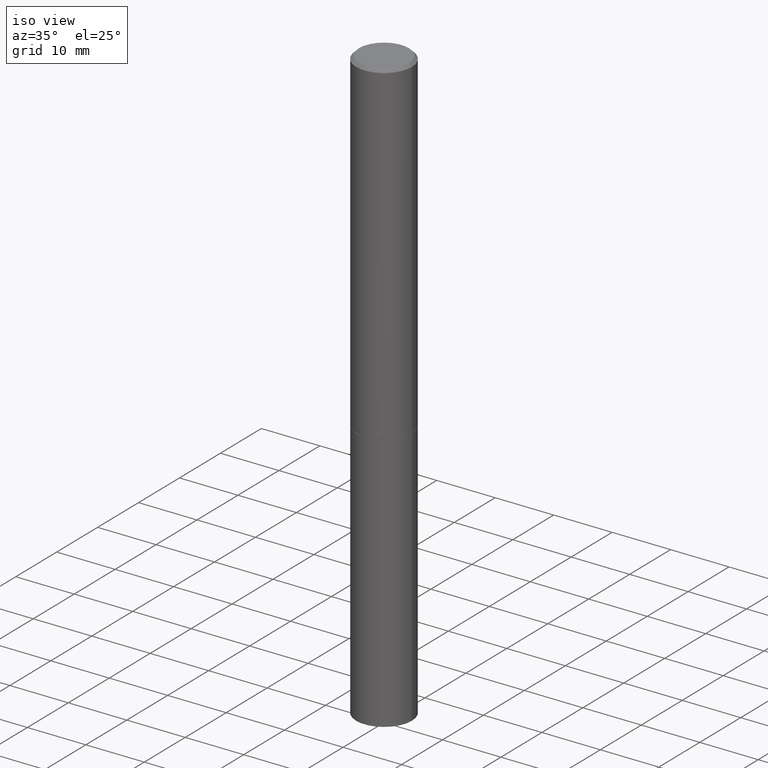
[diagram: clean part render]
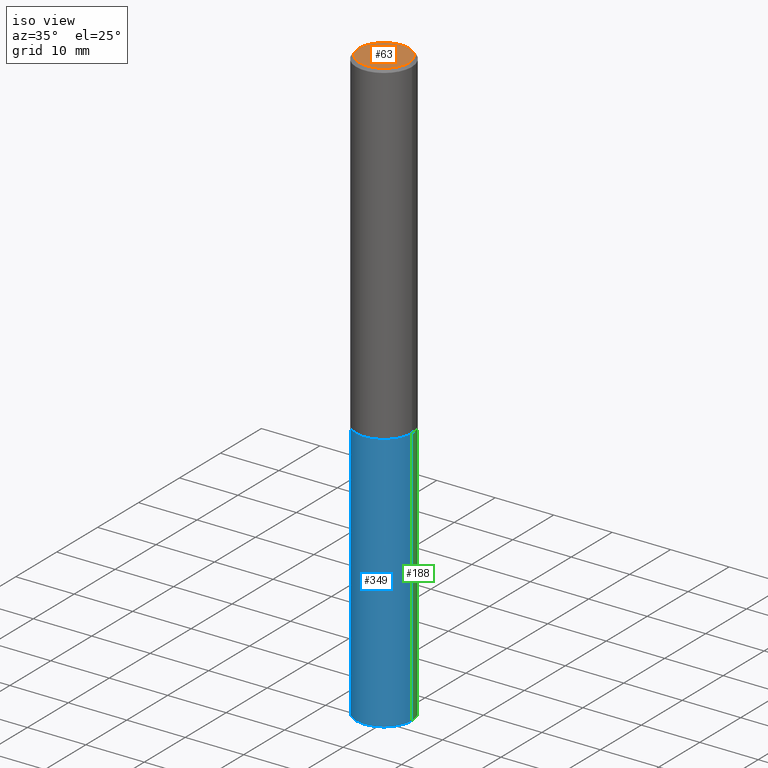
[diagram: same view with three faces highlighted in distinct colors, each labeled with its STEP entity id]
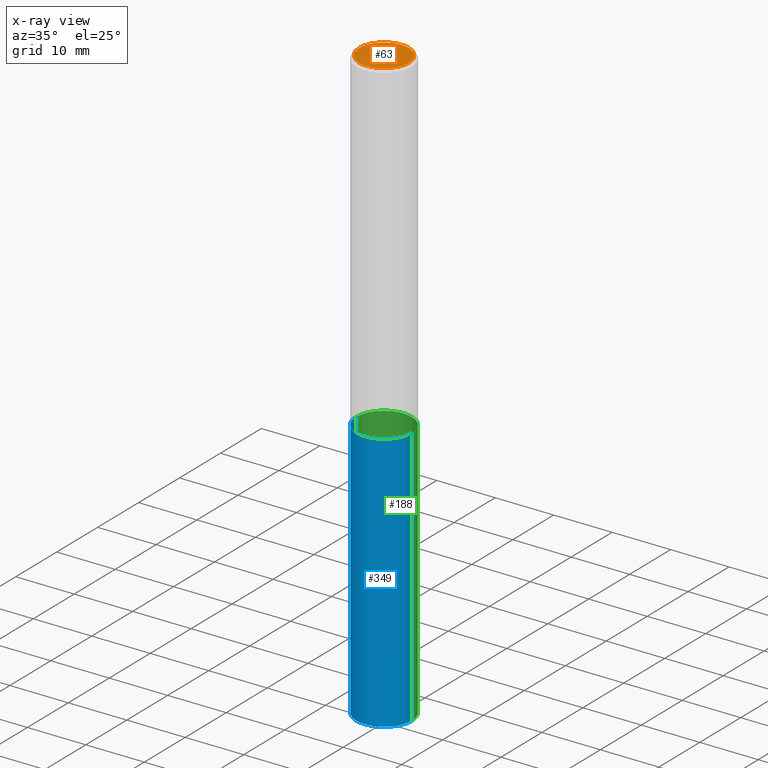
[diagram: x-ray of the same camera — body ghosted, the three highlighted faces saturated]
A machine part, iso view with three faces highlighted in distinct colors.
The next image is the same camera in x-ray (body ghosted, the three faces saturated) — at least one of them is partly hidden behind the body in this view.
Their STEP definitions:

[orange] entity #63 — the highlighted planar face has unit normal (0, -0, -1).
#5 = EDGE_CURVE ( 'NONE', #68, #230, #110, .T. ) ;
#11 = CARTESIAN_POINT ( 'NONE',  ( 0.000000000000000000, 0.000000000000000000, 0.000000000000000000 ) ) ;
#14 = ORIENTED_EDGE ( 'NONE', *, *, #5, .T. ) ;
#23 = AXIS2_PLACEMENT_3D ( 'NONE', #11, #173, #113 ) ;
#35 = CIRCLE ( 'NONE', #196, 0.1674999999999997602 ) ;
#47 = CARTESIAN_POINT ( 'NONE',  ( 1.169646248512447820E-15, 0.1674999999999997602, -5.848231242562259809E-16 ) ) ;
#54 = FACE_OUTER_BOUND ( 'NONE', #258, .T. ) ;
#63 = ADVANCED_FACE ( 'NONE', ( #54 ), #147, .F. ) ;
#68 = VERTEX_POINT ( 'NONE', #237 ) ;
#71 = EDGE_CURVE ( 'NONE', #230, #68, #35, .T. ) ;
#105 = ORIENTED_EDGE ( 'NONE', *, *, #71, .T. ) ;
#110 = CIRCLE ( 'NONE', #23, 0.1674999999999997602 ) ;
#113 = DIRECTION ( 'NONE',  ( 1.000000000000000000, -6.982962677686265922E-15, 4.876176775795935793E-29 ) ) ;
#147 = PLANE ( 'NONE',  #359 ) ;
#173 = DIRECTION ( 'NONE',  ( -2.445468806185136597E-29, 3.491481338843145583E-15, 1.000000000000000000 ) ) ;
#180 = CARTESIAN_POINT ( 'NONE',  ( 0.1674999999999997602, -1.252653207992876711E-15, 8.469775550109228175E-30 ) ) ;
#196 = AXIS2_PLACEMENT_3D ( 'NONE', #357, #336, #248 ) ;
#230 = VERTEX_POINT ( 'NONE', #180 ) ;
#233 = DIRECTION ( 'NONE',  ( 2.438088387897960049E-29, -3.491481338843145188E-15, -1.000000000000000000 ) ) ;
#237 = CARTESIAN_POINT ( 'NONE',  ( -0.1674999999999997602, 1.204561061900878878E-15, -8.301862719484099178E-30 ) ) ;
#248 = DIRECTION ( 'NONE',  ( 1.000000000000000000, -6.982962677686265922E-15, 4.876176775795935793E-29 ) ) ;
#258 = EDGE_LOOP ( 'NONE', ( #14, #105 ) ) ;
#268 = DIRECTION ( 'NONE',  ( -1.000000000000000000, 6.982962677686265922E-15, -4.876176775795935793E-29 ) ) ;
#336 = DIRECTION ( 'NONE',  ( -2.445468806185136597E-29, 3.491481338843145583E-15, 1.000000000000000000 ) ) ;
#357 = CARTESIAN_POINT ( 'NONE',  ( 0.000000000000000000, 0.000000000000000000, 0.000000000000000000 ) ) ;
#359 = AXIS2_PLACEMENT_3D ( 'NONE', #47, #233, #268 ) ;

[blue] entity #349 — the highlighted cylindrical surface (edge-blend (fillet) strip) has radius 4.7625 mm, axis along (-0, 0, 1).
#6 = CARTESIAN_POINT ( 'NONE',  ( 9.781875224740546387E-29, -1.396592535537258233E-14, -4.000000000000000000 ) ) ;
#16 = CARTESIAN_POINT ( 'NONE',  ( -0.1875000000000000278, -9.578611554334641752E-15, -4.000000000000000000 ) ) ;
#30 = EDGE_CURVE ( 'NONE', #321, #62, #247, .T. ) ;
#62 = VERTEX_POINT ( 'NONE', #176 ) ;
#64 = EDGE_LOOP ( 'NONE', ( #108, #318, #293, #89 ) ) ;
#66 = VECTOR ( 'NONE', #109, 39.37007874015748143 ) ;
#69 = FACE_OUTER_BOUND ( 'NONE', #64, .T. ) ;
#73 = LINE ( 'NONE', #269, #197 ) ;
#89 = ORIENTED_EDGE ( 'NONE', *, *, #30, .F. ) ;
#104 = AXIS2_PLACEMENT_3D ( 'NONE', #6, #319, #170 ) ;
#108 = ORIENTED_EDGE ( 'NONE', *, *, #178, .F. ) ;
#109 = DIRECTION ( 'NONE',  ( -2.445468806185136877E-29, 3.491481338843145188E-15, 1.000000000000000000 ) ) ;
#116 = CARTESIAN_POINT ( 'NONE',  ( 5.502304813916557343E-29, -7.855833012397078448E-15, -2.250000000000000000 ) ) ;
#125 = CARTESIAN_POINT ( 'NONE',  ( -0.1875000000000000278, -9.578611554334641752E-15, -2.250000000000000000 ) ) ;
#135 = CARTESIAN_POINT ( 'NONE',  ( -0.1875000000000000278, 1.332267629550188046E-15, -9.223003294227947991E-30 ) ) ;
#142 = DIRECTION ( 'NONE',  ( -2.445468806185136877E-29, 3.491481338843145188E-15, 1.000000000000000000 ) ) ;
#149 = DIRECTION ( 'NONE',  ( -2.445468806185136597E-29, 3.491481338843145583E-15, 1.000000000000000000 ) ) ;
#156 = CIRCLE ( 'NONE', #104, 0.1875000000000000278 ) ;
#161 = EDGE_CURVE ( 'NONE', #295, #352, #156, .T. ) ;
#170 = DIRECTION ( 'NONE',  ( 1.000000000000000000, -6.982962677686261189E-15, 0.000000000000000000 ) ) ;
#176 = CARTESIAN_POINT ( 'NONE',  ( 0.1875000000000000278, -9.165138514463253457E-15, -2.250000000000000000 ) ) ;
#177 = CARTESIAN_POINT ( 'NONE',  ( 0.000000000000000000, 0.000000000000000000, 0.000000000000000000 ) ) ;
#178 = EDGE_CURVE ( 'NONE', #295, #321, #261, .T. ) ;
#197 = VECTOR ( 'NONE', #142, 39.37007874015748143 ) ;
#205 = DIRECTION ( 'NONE',  ( 1.000000000000000000, -6.982962677686266711E-15, 0.000000000000000000 ) ) ;
#209 = DIRECTION ( 'NONE',  ( 1.000000000000000000, -6.982962677686265922E-15, 4.876176775795935793E-29 ) ) ;
#235 = EDGE_CURVE ( 'NONE', #352, #62, #73, .T. ) ;
#247 = CIRCLE ( 'NONE', #282, 0.1875000000000000278 ) ;
#261 = LINE ( 'NONE', #135, #66 ) ;
#269 = CARTESIAN_POINT ( 'NONE',  ( 0.1875000000000000278, -1.309305502066175008E-15, 9.142831454617381013E-30 ) ) ;
#270 = CARTESIAN_POINT ( 'NONE',  ( 0.1875000000000000278, -1.527523085743875734E-14, -4.000000000000000000 ) ) ;
#282 = AXIS2_PLACEMENT_3D ( 'NONE', #116, #297, #205 ) ;
#293 = ORIENTED_EDGE ( 'NONE', *, *, #235, .T. ) ;
#295 = VERTEX_POINT ( 'NONE', #16 ) ;
#297 = DIRECTION ( 'NONE',  ( -2.445468806185136597E-29, 3.491481338843145583E-15, 1.000000000000000000 ) ) ;
#318 = ORIENTED_EDGE ( 'NONE', *, *, #161, .T. ) ;
#319 = DIRECTION ( 'NONE',  ( -2.445468806185136597E-29, 3.491481338843145583E-15, 1.000000000000000000 ) ) ;
#321 = VERTEX_POINT ( 'NONE', #125 ) ;
#329 = CYLINDRICAL_SURFACE ( 'NONE', #343, 0.1875000000000000278 ) ;
#343 = AXIS2_PLACEMENT_3D ( 'NONE', #177, #149, #209 ) ;
#349 = ADVANCED_FACE ( 'NONE', ( #69 ), #329, .T. ) ;
#352 = VERTEX_POINT ( 'NONE', #270 ) ;

[green] entity #188 — the highlighted cylindrical surface (edge-blend (fillet) strip) has radius 4.7625 mm, axis along (-0, 0, 1).
#4 = ORIENTED_EDGE ( 'NONE', *, *, #148, .F. ) ;
#8 = DIRECTION ( 'NONE',  ( 1.000000000000000000, -6.982962677686265922E-15, 4.876176775795935793E-29 ) ) ;
#16 = CARTESIAN_POINT ( 'NONE',  ( -0.1875000000000000278, -9.578611554334641752E-15, -4.000000000000000000 ) ) ;
#41 = DIRECTION ( 'NONE',  ( 1.000000000000000000, -6.982962677686261189E-15, 0.000000000000000000 ) ) ;
#44 = AXIS2_PLACEMENT_3D ( 'NONE', #166, #288, #8 ) ;
#62 = VERTEX_POINT ( 'NONE', #176 ) ;
#66 = VECTOR ( 'NONE', #109, 39.37007874015748143 ) ;
#73 = LINE ( 'NONE', #269, #197 ) ;
#74 = ORIENTED_EDGE ( 'NONE', *, *, #207, .T. ) ;
#86 = FACE_OUTER_BOUND ( 'NONE', #175, .T. ) ;
#88 = CARTESIAN_POINT ( 'NONE',  ( 5.502304813916557343E-29, -7.855833012397078448E-15, -2.250000000000000000 ) ) ;
#99 = AXIS2_PLACEMENT_3D ( 'NONE', #169, #290, #41 ) ;
#109 = DIRECTION ( 'NONE',  ( -2.445468806185136877E-29, 3.491481338843145188E-15, 1.000000000000000000 ) ) ;
#120 = ORIENTED_EDGE ( 'NONE', *, *, #178, .T. ) ;
#125 = CARTESIAN_POINT ( 'NONE',  ( -0.1875000000000000278, -9.578611554334641752E-15, -2.250000000000000000 ) ) ;
#135 = CARTESIAN_POINT ( 'NONE',  ( -0.1875000000000000278, 1.332267629550188046E-15, -9.223003294227947991E-30 ) ) ;
#141 = ORIENTED_EDGE ( 'NONE', *, *, #235, .F. ) ;
#142 = DIRECTION ( 'NONE',  ( -2.445468806185136877E-29, 3.491481338843145188E-15, 1.000000000000000000 ) ) ;
#148 = EDGE_CURVE ( 'NONE', #62, #321, #273, .T. ) ;
#164 = CIRCLE ( 'NONE', #99, 0.1875000000000000278 ) ;
#166 = CARTESIAN_POINT ( 'NONE',  ( 0.000000000000000000, 0.000000000000000000, 0.000000000000000000 ) ) ;
#169 = CARTESIAN_POINT ( 'NONE',  ( 9.781875224740546387E-29, -1.396592535537258233E-14, -4.000000000000000000 ) ) ;
#175 = EDGE_LOOP ( 'NONE', ( #74, #120, #4, #141 ) ) ;
#176 = CARTESIAN_POINT ( 'NONE',  ( 0.1875000000000000278, -9.165138514463253457E-15, -2.250000000000000000 ) ) ;
#178 = EDGE_CURVE ( 'NONE', #295, #321, #261, .T. ) ;
#188 = ADVANCED_FACE ( 'NONE', ( #86 ), #195, .T. ) ;
#195 = CYLINDRICAL_SURFACE ( 'NONE', #44, 0.1875000000000000278 ) ;
#197 = VECTOR ( 'NONE', #142, 39.37007874015748143 ) ;
#199 = DIRECTION ( 'NONE',  ( 1.000000000000000000, -6.982962677686266711E-15, 0.000000000000000000 ) ) ;
#207 = EDGE_CURVE ( 'NONE', #352, #295, #164, .T. ) ;
#235 = EDGE_CURVE ( 'NONE', #352, #62, #73, .T. ) ;
#255 = DIRECTION ( 'NONE',  ( -2.445468806185136597E-29, 3.491481338843145583E-15, 1.000000000000000000 ) ) ;
#261 = LINE ( 'NONE', #135, #66 ) ;
#269 = CARTESIAN_POINT ( 'NONE',  ( 0.1875000000000000278, -1.309305502066175008E-15, 9.142831454617381013E-30 ) ) ;
#270 = CARTESIAN_POINT ( 'NONE',  ( 0.1875000000000000278, -1.527523085743875734E-14, -4.000000000000000000 ) ) ;
#273 = CIRCLE ( 'NONE', #324, 0.1875000000000000278 ) ;
#288 = DIRECTION ( 'NONE',  ( -2.445468806185136597E-29, 3.491481338843145583E-15, 1.000000000000000000 ) ) ;
#290 = DIRECTION ( 'NONE',  ( -2.445468806185136597E-29, 3.491481338843145583E-15, 1.000000000000000000 ) ) ;
#295 = VERTEX_POINT ( 'NONE', #16 ) ;
#321 = VERTEX_POINT ( 'NONE', #125 ) ;
#324 = AXIS2_PLACEMENT_3D ( 'NONE', #88, #255, #199 ) ;
#352 = VERTEX_POINT ( 'NONE', #270 ) ;